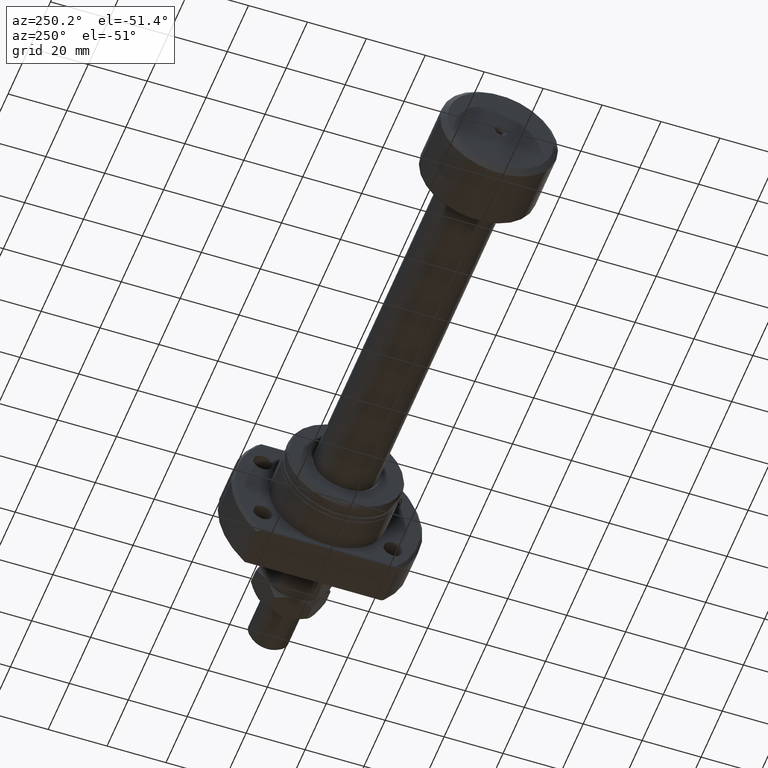
[diagram: clean part render]
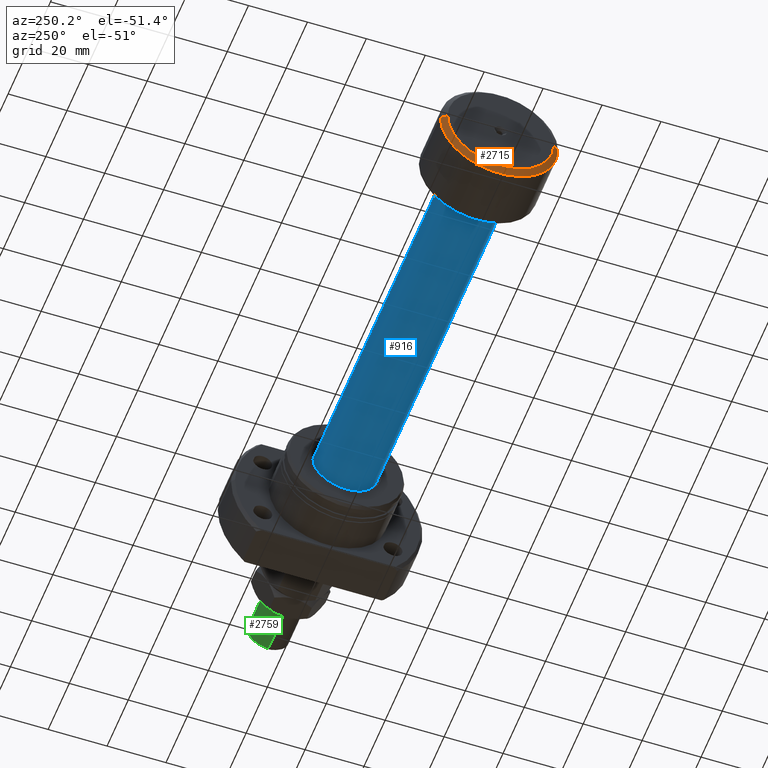
[diagram: same view with three faces highlighted in distinct colors, each labeled with its STEP entity id]
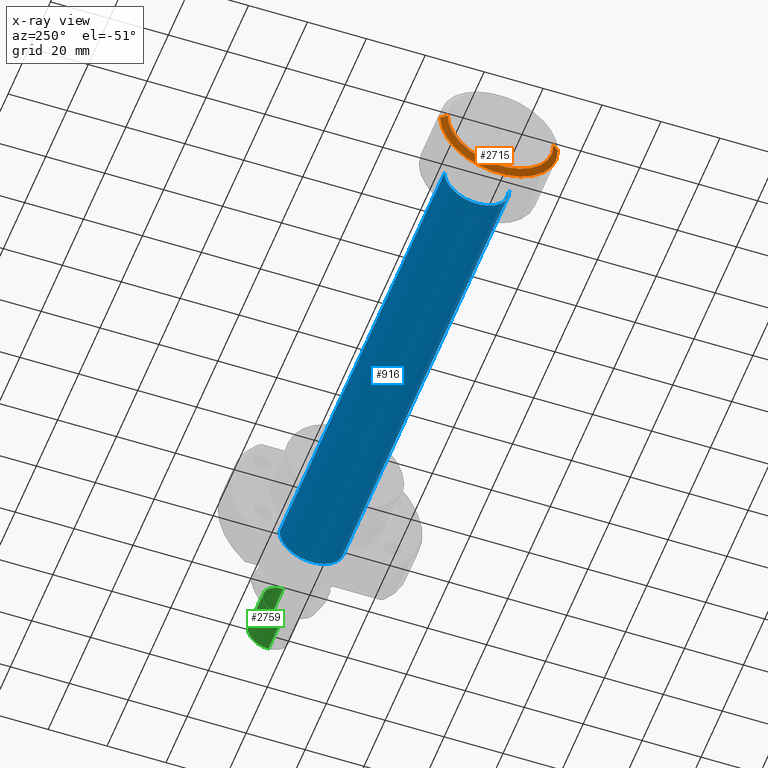
[diagram: x-ray of the same camera — body ghosted, the three highlighted faces saturated]
A machine part, auxiliary view with three faces highlighted in distinct colors.
The next image is the same camera in x-ray (body ghosted, the three faces saturated) — at least one of them is partly hidden behind the body in this view.
Their STEP definitions:

[orange] entity #2715 — the highlighted conical surface has half-angle 53.13 deg.
#87 = DIRECTION ( 'NONE',  ( 0.6000000000000005329, 0.7999999999999996003, 0.000000000000000000 ) ) ;
#148 = FACE_OUTER_BOUND ( 'NONE', #3069, .T. ) ;
#150 = ORIENTED_EDGE ( 'NONE', *, *, #4791, .T. ) ;
#264 = CIRCLE ( 'NONE', #2900, 18.00000000000000355 ) ;
#319 = CARTESIAN_POINT ( 'NONE',  ( 1.819329002520372041E-15, 18.00000000000000355, 0.000000000000000000 ) ) ;
#332 = AXIS2_PLACEMENT_3D ( 'NONE', #856, #1615, #1930 ) ;
#510 = CARTESIAN_POINT ( 'NONE',  ( 1.819329002520372041E-15, 18.00000000000000355, 0.000000000000000000 ) ) ;
#590 = DIRECTION ( 'NONE',  ( 0.6000000000000005329, -0.7999999999999996003, 9.797174393178821220E-17 ) ) ;
#845 = DIRECTION ( 'NONE',  ( 1.084202172485504434E-17, -1.000000000000000000, 0.000000000000000000 ) ) ;
#856 = CARTESIAN_POINT ( 'NONE',  ( 2.011846620492804129E-15, 2.151755106128676308E-32, 0.000000000000000000 ) ) ;
#891 = EDGE_CURVE ( 'NONE', #1241, #1278, #3102, .T. ) ;
#958 = LINE ( 'NONE', #2122, #2052 ) ;
#992 = DIRECTION ( 'NONE',  ( 1.069542322069065647E-17, -1.000000000000000000, 0.000000000000000000 ) ) ;
#1187 = CARTESIAN_POINT ( 'NONE',  ( 1.500000000000002442, 1.604313483103601552E-17, 0.000000000000000000 ) ) ;
#1241 = VERTEX_POINT ( 'NONE', #319 ) ;
#1278 = VERTEX_POINT ( 'NONE', #4396 ) ;
#1324 = AXIS2_PLACEMENT_3D ( 'NONE', #1187, #1920, #845 ) ;
#1407 = ORIENTED_EDGE ( 'NONE', *, *, #3685, .F. ) ;
#1615 = DIRECTION ( 'NONE',  ( 1.000000000000000000, 1.069542322069065801E-17, 0.000000000000000000 ) ) ;
#1616 = CARTESIAN_POINT ( 'NONE',  ( 2.204364238465235822E-15, -18.00000000000000355, 2.326828918379971365E-15 ) ) ;
#1920 = DIRECTION ( 'NONE',  ( -1.000000000000000000, -1.069542322069065801E-17, -0.000000000000000000 ) ) ;
#1930 = DIRECTION ( 'NONE',  ( -1.069542322069065647E-17, 1.000000000000000000, 0.000000000000000000 ) ) ;
#1998 = ORIENTED_EDGE ( 'NONE', *, *, #2841, .F. ) ;
#2052 = VECTOR ( 'NONE', #590, 1000.000000000000000 ) ;
#2122 = CARTESIAN_POINT ( 'NONE',  ( 2.204364238465235822E-15, -18.00000000000000355, 2.204364238465235822E-15 ) ) ;
#2130 = DIRECTION ( 'NONE',  ( -1.000000000000000000, -1.069542322069065801E-17, -0.000000000000000000 ) ) ;
#2278 = VERTEX_POINT ( 'NONE', #2388 ) ;
#2388 = CARTESIAN_POINT ( 'NONE',  ( 1.500000000000002887, -20.00000000000000000, 2.449293598294706513E-15 ) ) ;
#2399 = CIRCLE ( 'NONE', #1324, 20.00000000000000000 ) ;
#2428 = CONICAL_SURFACE ( 'NONE', #332, 18.00000000000000355, 0.9272952180016115209 ) ;
#2715 = ADVANCED_FACE ( 'NONE', ( #148 ), #2428, .T. ) ;
#2841 = EDGE_CURVE ( 'NONE', #3989, #2278, #958, .T. ) ;
#2900 = AXIS2_PLACEMENT_3D ( 'NONE', #3220, #2130, #992 ) ;
#3042 = VECTOR ( 'NONE', #87, 1000.000000000000000 ) ;
#3069 = EDGE_LOOP ( 'NONE', ( #1998, #1407, #4172, #150 ) ) ;
#3102 = LINE ( 'NONE', #510, #3042 ) ;
#3220 = CARTESIAN_POINT ( 'NONE',  ( 2.011846620492804129E-15, 2.151755106128676308E-32, 0.000000000000000000 ) ) ;
#3685 = EDGE_CURVE ( 'NONE', #1241, #3989, #264, .T. ) ;
#3989 = VERTEX_POINT ( 'NONE', #1616 ) ;
#4172 = ORIENTED_EDGE ( 'NONE', *, *, #891, .T. ) ;
#4396 = CARTESIAN_POINT ( 'NONE',  ( 1.500000000000002442, 20.00000000000000000, 0.000000000000000000 ) ) ;
#4791 = EDGE_CURVE ( 'NONE', #1278, #2278, #2399, .T. ) ;

[blue] entity #916 — the highlighted cylindrical surface (edge-blend (fillet) strip) has radius 11 mm, axis along (-1, -0, -0).
#78 = ORIENTED_EDGE ( 'NONE', *, *, #2274, .F. ) ;
#433 = VECTOR ( 'NONE', #677, 1000.000000000000000 ) ;
#489 = CIRCLE ( 'NONE', #2575, 11.00000000000000000 ) ;
#677 = DIRECTION ( 'NONE',  ( -1.000000000000000000, -1.069542322069065801E-17, -0.000000000000000000 ) ) ;
#698 = EDGE_CURVE ( 'NONE', #745, #1443, #2418, .T. ) ;
#745 = VERTEX_POINT ( 'NONE', #2930 ) ;
#916 = ADVANCED_FACE ( 'NONE', ( #4575 ), #2302, .T. ) ;
#962 = ORIENTED_EDGE ( 'NONE', *, *, #698, .T. ) ;
#1043 = VECTOR ( 'NONE', #2947, 1000.000000000000000 ) ;
#1126 = ORIENTED_EDGE ( 'NONE', *, *, #3405, .T. ) ;
#1443 = VERTEX_POINT ( 'NONE', #3404 ) ;
#1942 = CARTESIAN_POINT ( 'NONE',  ( 0.000000000000000000, 0.000000000000000000, 0.000000000000000000 ) ) ;
#2228 = LINE ( 'NONE', #4366, #1043 ) ;
#2274 = EDGE_CURVE ( 'NONE', #3460, #4096, #489, .T. ) ;
#2302 = CYLINDRICAL_SURFACE ( 'NONE', #4585, 11.00000000000009592 ) ;
#2418 = CIRCLE ( 'NONE', #4666, 11.00000000000019540 ) ;
#2528 = CARTESIAN_POINT ( 'NONE',  ( 22.40000000000000924, -11.00000000000000000, 0.000000000000000000 ) ) ;
#2545 = DIRECTION ( 'NONE',  ( -1.000000000000000000, -1.069542322069065801E-17, -0.000000000000000000 ) ) ;
#2557 = DIRECTION ( 'NONE',  ( -1.000000000000000000, -1.069542322069065801E-17, -0.000000000000000000 ) ) ;
#2575 = AXIS2_PLACEMENT_3D ( 'NONE', #2585, #2557, #3150 ) ;
#2585 = CARTESIAN_POINT ( 'NONE',  ( 22.40000000000000924, 2.395774801434708725E-16, 0.000000000000000000 ) ) ;
#2930 = CARTESIAN_POINT ( 'NONE',  ( 178.0667575123237611, 11.00000000000019718, 1.347111479062112662E-15 ) ) ;
#2947 = DIRECTION ( 'NONE',  ( -1.000000000000000000, -1.069542322069065801E-17, -0.000000000000000000 ) ) ;
#3081 = DIRECTION ( 'NONE',  ( 1.069542322069065801E-17, -1.000000000000000000, 0.000000000000000000 ) ) ;
#3150 = DIRECTION ( 'NONE',  ( 0.000000000000000000, -1.000000000000000000, 0.000000000000000000 ) ) ;
#3401 = ORIENTED_EDGE ( 'NONE', *, *, #4709, .F. ) ;
#3404 = CARTESIAN_POINT ( 'NONE',  ( 178.0667575123237611, -11.00000000000019362, 0.000000000000000000 ) ) ;
#3405 = EDGE_CURVE ( 'NONE', #1443, #4096, #2228, .T. ) ;
#3420 = DIRECTION ( 'NONE',  ( -1.000000000000000000, -1.069542322069065801E-17, -0.000000000000000000 ) ) ;
#3460 = VERTEX_POINT ( 'NONE', #4013 ) ;
#3668 = DIRECTION ( 'NONE',  ( 0.000000000000000000, -1.000000000000000000, 0.000000000000000000 ) ) ;
#4013 = CARTESIAN_POINT ( 'NONE',  ( 22.40000000000000924, 11.00000000000000000, 1.347111479062094321E-15 ) ) ;
#4085 = CARTESIAN_POINT ( 'NONE',  ( 178.0667575123237611, 1.904499333130400251E-15, 0.000000000000000000 ) ) ;
#4096 = VERTEX_POINT ( 'NONE', #2528 ) ;
#4366 = CARTESIAN_POINT ( 'NONE',  ( 1.176496554275982688E-16, -11.00000000000009592, 0.000000000000000000 ) ) ;
#4406 = LINE ( 'NONE', #4456, #433 ) ;
#4456 = CARTESIAN_POINT ( 'NONE',  ( -1.176496554275982688E-16, 11.00000000000009592, 1.347111479062100435E-15 ) ) ;
#4575 = FACE_OUTER_BOUND ( 'NONE', #4788, .T. ) ;
#4585 = AXIS2_PLACEMENT_3D ( 'NONE', #1942, #3420, #3081 ) ;
#4666 = AXIS2_PLACEMENT_3D ( 'NONE', #4085, #2545, #3668 ) ;
#4709 = EDGE_CURVE ( 'NONE', #745, #3460, #4406, .T. ) ;
#4788 = EDGE_LOOP ( 'NONE', ( #3401, #962, #1126, #78 ) ) ;

[green] entity #2759 — the highlighted cylindrical surface (edge-blend (fillet) strip) has radius 7 mm, axis along (-1, -0, 0).
#65 = VERTEX_POINT ( 'NONE', #4348 ) ;
#232 = CARTESIAN_POINT ( 'NONE',  ( -7.000000000000000000, 0.000000000000000000, 22.00000000000000355 ) ) ;
#257 = ORIENTED_EDGE ( 'NONE', *, *, #1012, .T. ) ;
#421 = VECTOR ( 'NONE', #3929, 1000.000000000000000 ) ;
#517 = CARTESIAN_POINT ( 'NONE',  ( 0.000000000000000000, 0.000000000000000000, 35.99999999999999289 ) ) ;
#697 = LINE ( 'NONE', #2928, #2531 ) ;
#762 = VERTEX_POINT ( 'NONE', #4408 ) ;
#1012 = EDGE_CURVE ( 'NONE', #65, #2071, #3435, .T. ) ;
#1116 = DIRECTION ( 'NONE',  ( -0.000000000000000000, -0.000000000000000000, -1.000000000000000000 ) ) ;
#1365 = CARTESIAN_POINT ( 'NONE',  ( 0.000000000000000000, 0.000000000000000000, 22.00000000000000355 ) ) ;
#1430 = EDGE_CURVE ( 'NONE', #762, #1927, #4421, .T. ) ;
#1646 = AXIS2_PLACEMENT_3D ( 'NONE', #517, #2748, #3850 ) ;
#1836 = EDGE_LOOP ( 'NONE', ( #2616, #3614, #257, #2111 ) ) ;
#1927 = VERTEX_POINT ( 'NONE', #2415 ) ;
#2071 = VERTEX_POINT ( 'NONE', #232 ) ;
#2111 = ORIENTED_EDGE ( 'NONE', *, *, #4677, .F. ) ;
#2345 = AXIS2_PLACEMENT_3D ( 'NONE', #1365, #3157, #3227 ) ;
#2415 = CARTESIAN_POINT ( 'NONE',  ( 7.000000000000000000, 8.572527594031473190E-16, 35.99999999999999289 ) ) ;
#2506 = AXIS2_PLACEMENT_3D ( 'NONE', #3851, #4560, #3406 ) ;
#2531 = VECTOR ( 'NONE', #1116, 1000.000000000000000 ) ;
#2616 = ORIENTED_EDGE ( 'NONE', *, *, #1430, .T. ) ;
#2678 = CYLINDRICAL_SURFACE ( 'NONE', #2506, 7.000000000000000000 ) ;
#2748 = DIRECTION ( 'NONE',  ( 0.000000000000000000, 0.000000000000000000, -1.000000000000000000 ) ) ;
#2759 = ADVANCED_FACE ( 'NONE', ( #4614 ), #2678, .T. ) ;
#2794 = CARTESIAN_POINT ( 'NONE',  ( 7.000000000000000000, 8.572527594031473190E-16, 37.00000000000000000 ) ) ;
#2928 = CARTESIAN_POINT ( 'NONE',  ( -7.000000000000000000, 0.000000000000000000, 37.00000000000000000 ) ) ;
#3157 = DIRECTION ( 'NONE',  ( -0.000000000000000000, -0.000000000000000000, 1.000000000000000000 ) ) ;
#3213 = LINE ( 'NONE', #2794, #421 ) ;
#3227 = DIRECTION ( 'NONE',  ( 1.000000000000000000, 0.000000000000000000, 0.000000000000000000 ) ) ;
#3406 = DIRECTION ( 'NONE',  ( -1.000000000000000000, 0.000000000000000000, 0.000000000000000000 ) ) ;
#3435 = CIRCLE ( 'NONE', #2345, 7.000000000000000000 ) ;
#3614 = ORIENTED_EDGE ( 'NONE', *, *, #4097, .T. ) ;
#3850 = DIRECTION ( 'NONE',  ( 1.000000000000000000, 0.000000000000000000, 0.000000000000000000 ) ) ;
#3851 = CARTESIAN_POINT ( 'NONE',  ( 0.000000000000000000, 0.000000000000000000, 37.00000000000000000 ) ) ;
#3929 = DIRECTION ( 'NONE',  ( -0.000000000000000000, -0.000000000000000000, -1.000000000000000000 ) ) ;
#4097 = EDGE_CURVE ( 'NONE', #1927, #65, #3213, .T. ) ;
#4348 = CARTESIAN_POINT ( 'NONE',  ( 7.000000000000000000, 8.572527594031473190E-16, 22.00000000000000355 ) ) ;
#4408 = CARTESIAN_POINT ( 'NONE',  ( -7.000000000000000000, 0.000000000000000000, 35.99999999999999289 ) ) ;
#4421 = CIRCLE ( 'NONE', #1646, 7.000000000000000000 ) ;
#4560 = DIRECTION ( 'NONE',  ( -0.000000000000000000, -0.000000000000000000, -1.000000000000000000 ) ) ;
#4614 = FACE_OUTER_BOUND ( 'NONE', #1836, .T. ) ;
#4677 = EDGE_CURVE ( 'NONE', #762, #2071, #697, .T. ) ;